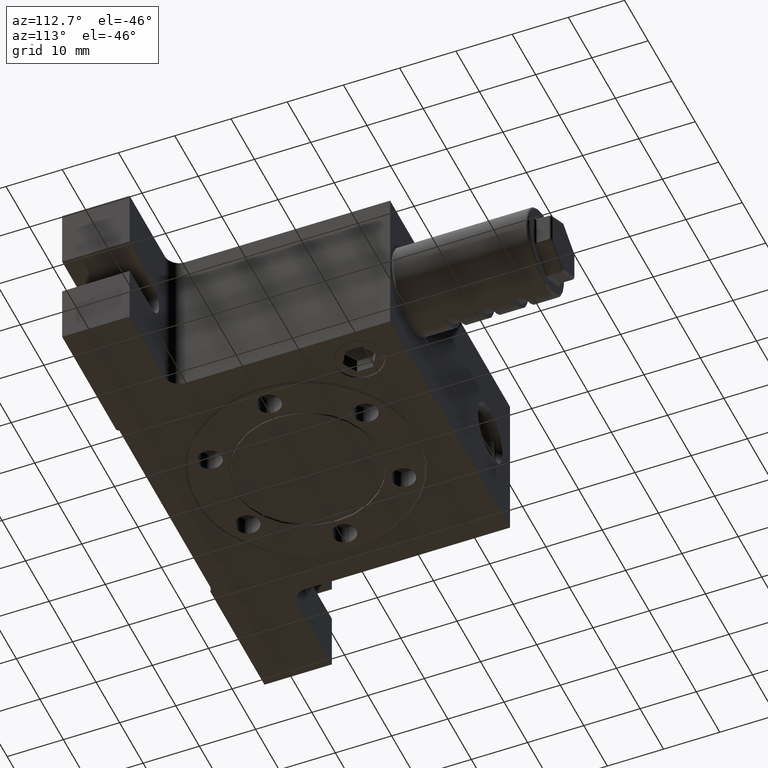
[diagram: clean part render]
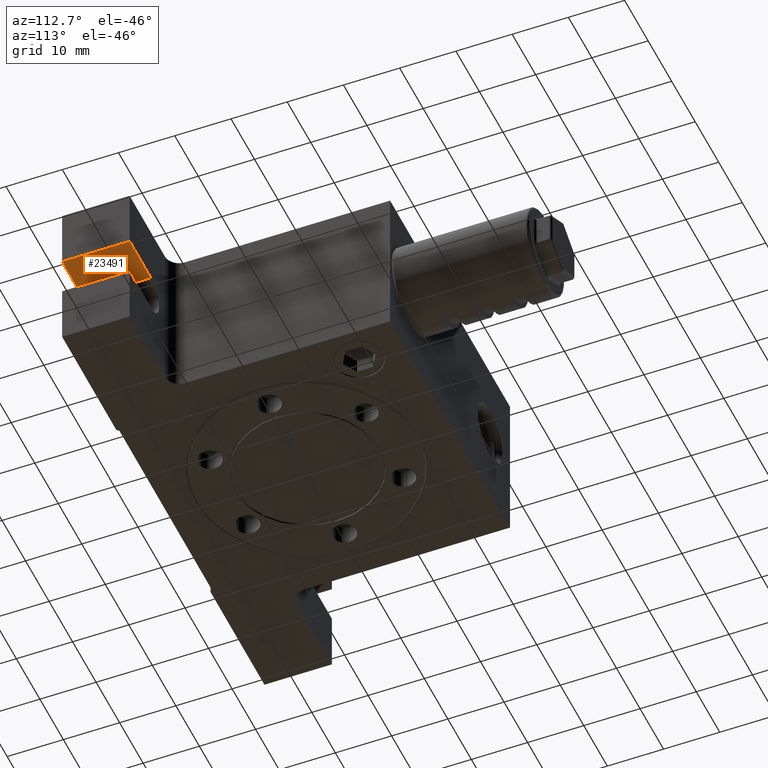
[diagram: same view with one face highlighted and labeled with its STEP entity id]
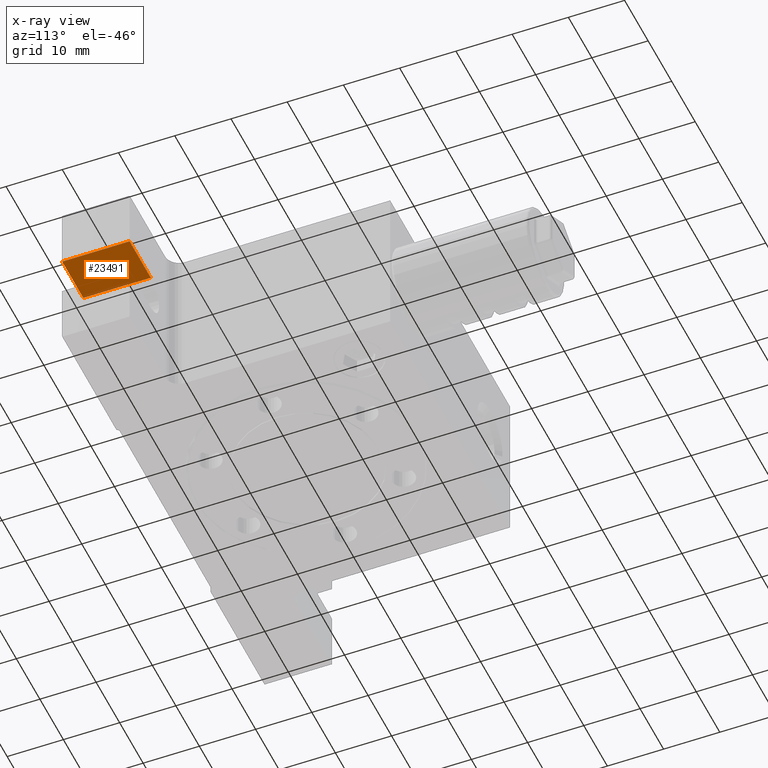
[diagram: x-ray of the same camera — body ghosted, the highlighted face saturated]
A machine part, auxiliary view. The second image highlights one B-rep face of the part: STEP entity #23491.
The next image is the same camera in x-ray: the body ghosted, the highlighted face saturated — about 3% of this face is hidden behind the body in this view.
In plain terms, the highlighted planar face has unit normal (0, 0, 1).
Its self-contained STEP definition (entity closure, byte-faithful):
#2145 = EDGE_CURVE ( 'NONE', #13505, #21516, #26721, .T. ) ;
#2304 = ORIENTED_EDGE ( 'NONE', *, *, #4664, .T. ) ;
#2617 = DIRECTION ( 'NONE',  ( 1.445602896647339900E-016, 0.0000000000000000000, 1.000000000000000000 ) ) ;
#2807 = VERTEX_POINT ( 'NONE', #26703 ) ;
#4664 = EDGE_CURVE ( 'NONE', #6769, #21516, #10896, .T. ) ;
#5015 = PLANE ( 'NONE',  #24957 ) ;
#5857 = LINE ( 'NONE', #11801, #8790 ) ;
#5902 = ORIENTED_EDGE ( 'NONE', *, *, #2145, .F. ) ;
#6769 = VERTEX_POINT ( 'NONE', #32021 ) ;
#8790 = VECTOR ( 'NONE', #30710, 1000.000000000000000 ) ;
#10689 = DIRECTION ( 'NONE',  ( 1.000000000000000000, 0.0000000000000000000, -1.445602896647339900E-016 ) ) ;
#10896 = LINE ( 'NONE', #27411, #31170 ) ;
#11801 = CARTESIAN_POINT ( 'NONE',  ( 43.00000000000000000, -25.50000000000000000, 3.500000000000000000 ) ) ;
#12348 = VECTOR ( 'NONE', #12976, 1000.000000000000000 ) ;
#12976 = DIRECTION ( 'NONE',  ( 0.0000000000000000000, 1.000000000000000000, 0.0000000000000000000 ) ) ;
#13505 = VERTEX_POINT ( 'NONE', #17229 ) ;
#14608 = VECTOR ( 'NONE', #31391, 1000.000000000000000 ) ;
#17229 = CARTESIAN_POINT ( 'NONE',  ( 43.00000000000000000, -25.50000000000000000, 3.500000000000000000 ) ) ;
#17684 = EDGE_CURVE ( 'NONE', #2807, #13505, #5857, .T. ) ;
#19883 = ORIENTED_EDGE ( 'NONE', *, *, #21291, .T. ) ;
#20849 = FACE_OUTER_BOUND ( 'NONE', #29593, .T. ) ;
#21291 = EDGE_CURVE ( 'NONE', #2807, #6769, #27684, .T. ) ;
#21516 = VERTEX_POINT ( 'NONE', #21830 ) ;
#21830 = CARTESIAN_POINT ( 'NONE',  ( 43.00000000000000000, -13.50000000000000000, 3.500000000000000000 ) ) ;
#21930 = ORIENTED_EDGE ( 'NONE', *, *, #17684, .F. ) ;
#23491 = ADVANCED_FACE ( 'NONE', ( #20849 ), #5015, .F. ) ;
#24942 = DIRECTION ( 'NONE',  ( 1.000000000000000000, 0.0000000000000000000, -1.445602896647339900E-016 ) ) ;
#24957 = AXIS2_PLACEMENT_3D ( 'NONE', #29249, #2617, #10689 ) ;
#26176 = CARTESIAN_POINT ( 'NONE',  ( 34.00000000000000000, -25.50000000000000000, 3.500000000000000000 ) ) ;
#26703 = CARTESIAN_POINT ( 'NONE',  ( 34.00000000000000000, -25.50000000000000000, 3.500000000000000000 ) ) ;
#26721 = LINE ( 'NONE', #29181, #12348 ) ;
#27411 = CARTESIAN_POINT ( 'NONE',  ( 43.00000000000000000, -13.50000000000000000, 3.500000000000000000 ) ) ;
#27684 = LINE ( 'NONE', #26176, #14608 ) ;
#29181 = CARTESIAN_POINT ( 'NONE',  ( 43.00000000000000000, -25.50000000000000000, 3.500000000000000000 ) ) ;
#29249 = CARTESIAN_POINT ( 'NONE',  ( 43.00000000000000000, -25.50000000000000000, 3.500000000000000000 ) ) ;
#29593 = EDGE_LOOP ( 'NONE', ( #2304, #5902, #21930, #19883 ) ) ;
#30710 = DIRECTION ( 'NONE',  ( 1.000000000000000000, 0.0000000000000000000, -1.445602896647339900E-016 ) ) ;
#31170 = VECTOR ( 'NONE', #24942, 1000.000000000000000 ) ;
#31391 = DIRECTION ( 'NONE',  ( 0.0000000000000000000, 1.000000000000000000, 0.0000000000000000000 ) ) ;
#32021 = CARTESIAN_POINT ( 'NONE',  ( 34.00000000000000000, -13.50000000000000000, 3.500000000000000000 ) ) ;